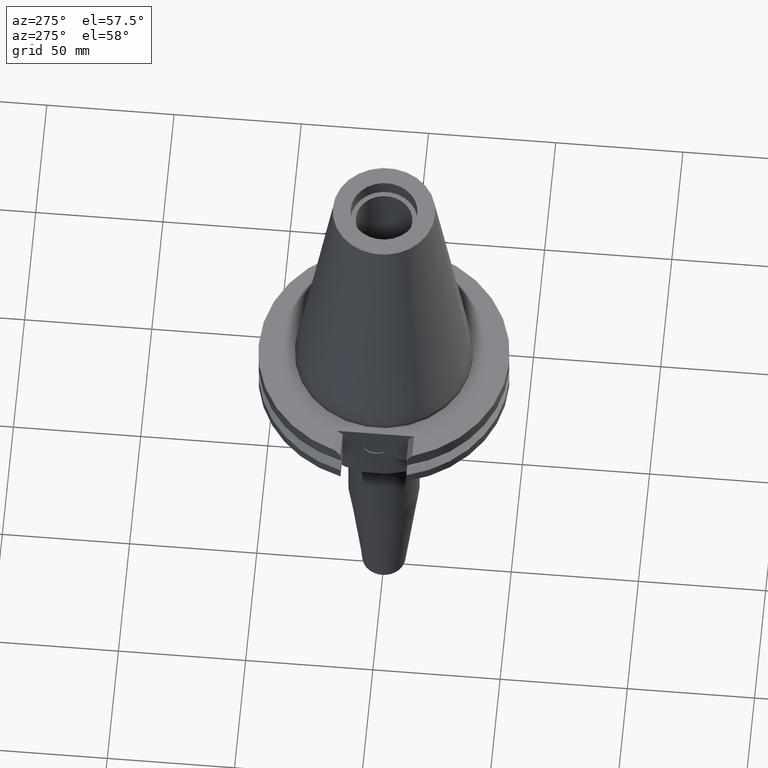
[diagram: clean part render]
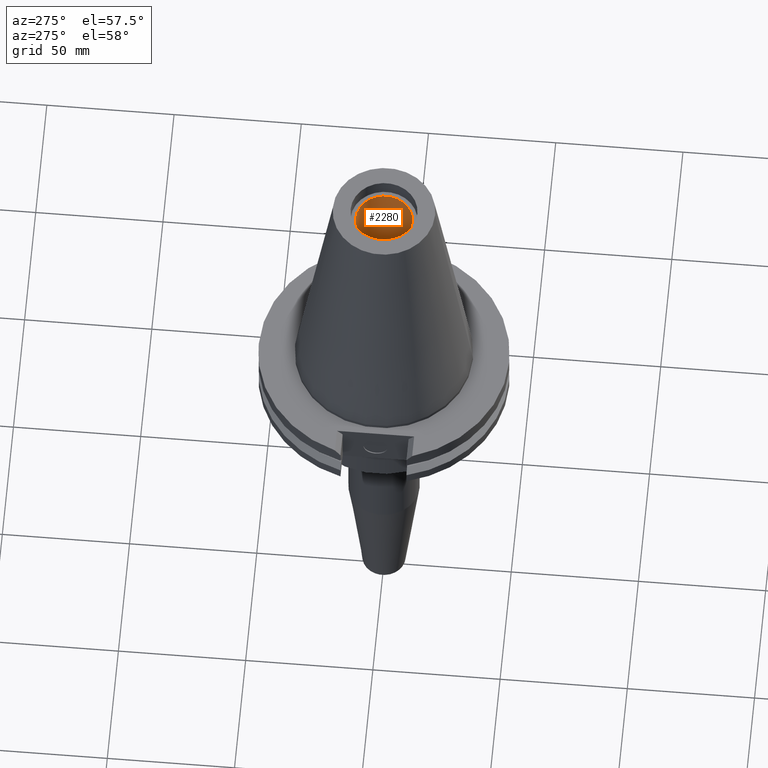
[diagram: same view with one face highlighted and labeled with its STEP entity id]
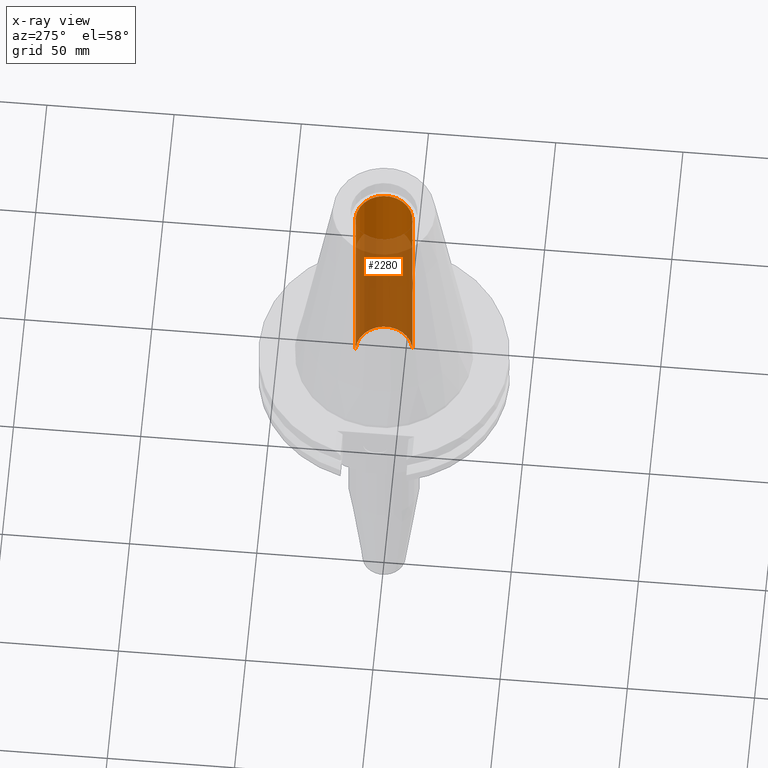
[diagram: x-ray of the same camera — body ghosted, the highlighted face saturated]
A machine part, auxiliary view. The second image highlights one B-rep face of the part: STEP entity #2280.
The next image is the same camera in x-ray: the body ghosted, the highlighted face saturated — about 72% of this face is hidden behind the body in this view.
In plain terms, the highlighted cylindrical surface (edge-blend (fillet) strip) has radius 11.15 mm, axis along (0, 0, -1).
Its self-contained STEP definition (entity closure, byte-faithful):
#1128=DIRECTION('',(0.E0,0.E0,1.E0));
#1129=VECTOR('',#1128,9.525E1);
#1130=CARTESIAN_POINT('',(0.E0,1.115E1,-1.563194018672E-13));
#1131=LINE('',#1130,#1129);
#1135=CARTESIAN_POINT('',(0.E0,1.398301715266E-14,-1.278976924368E-13));
#1136=DIRECTION('',(0.E0,0.E0,1.E0));
#1137=DIRECTION('',(0.E0,-1.E0,0.E0));
#1138=AXIS2_PLACEMENT_3D('',#1135,#1136,#1137);
#1143=DIRECTION('',(0.E0,0.E0,1.E0));
#1144=VECTOR('',#1143,9.525E1);
#1145=CARTESIAN_POINT('',(0.E0,-1.115E1,-1.563194018672E-13));
#1146=LINE('',#1145,#1144);
#1166=CARTESIAN_POINT('',(0.E0,1.398301715266E-14,9.525E1));
#1167=DIRECTION('',(0.E0,0.E0,1.E0));
#1168=DIRECTION('',(0.E0,-1.E0,0.E0));
#1169=AXIS2_PLACEMENT_3D('',#1166,#1167,#1168);
#1208=CARTESIAN_POINT('',(0.E0,-1.115E1,9.525E1));
#1209=CARTESIAN_POINT('',(0.E0,1.115E1,9.525E1));
#1210=VERTEX_POINT('',#1208);
#1211=VERTEX_POINT('',#1209);
#1212=CARTESIAN_POINT('',(0.E0,1.115E1,-1.563194018672E-13));
#1213=VERTEX_POINT('',#1212);
#1214=CARTESIAN_POINT('',(0.E0,-1.115E1,-1.563194018672E-13));
#1215=VERTEX_POINT('',#1214);
#2266=CARTESIAN_POINT('',(0.E0,1.398301715266E-14,1.1418E2));
#2267=DIRECTION('',(0.E0,0.E0,-1.E0));
#2268=DIRECTION('',(0.E0,-1.E0,0.E0));
#2269=AXIS2_PLACEMENT_3D('',#2266,#2267,#2268);
#2270=CYLINDRICAL_SURFACE('',#2269,1.115E1);
#2272=ORIENTED_EDGE('',*,*,#2271,.T.);
#2274=ORIENTED_EDGE('',*,*,#2273,.F.);
#2276=ORIENTED_EDGE('',*,*,#2275,.F.);
#2277=ORIENTED_EDGE('',*,*,#2259,.T.);
#2278=EDGE_LOOP('',(#2272,#2274,#2276,#2277));
#2279=FACE_OUTER_BOUND('',#2278,.F.);
#1139=CIRCLE('',#1138,1.115E1);
#1170=CIRCLE('',#1169,1.115E1);
#2259=EDGE_CURVE('',#1215,#1213,#1139,.T.);
#2271=EDGE_CURVE('',#1213,#1211,#1131,.T.);
#2273=EDGE_CURVE('',#1210,#1211,#1170,.T.);
#2275=EDGE_CURVE('',#1215,#1210,#1146,.T.);
#2280=ADVANCED_FACE('',(#2279),#2270,.F.);